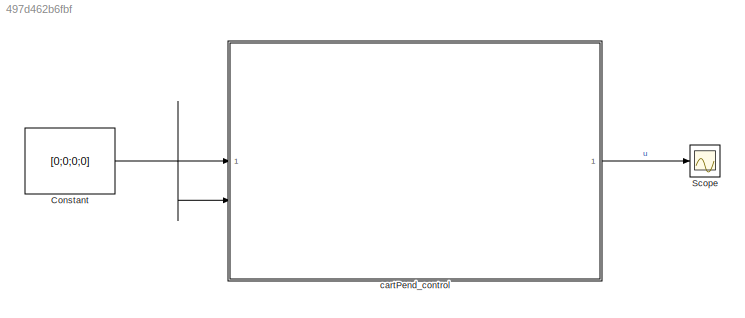
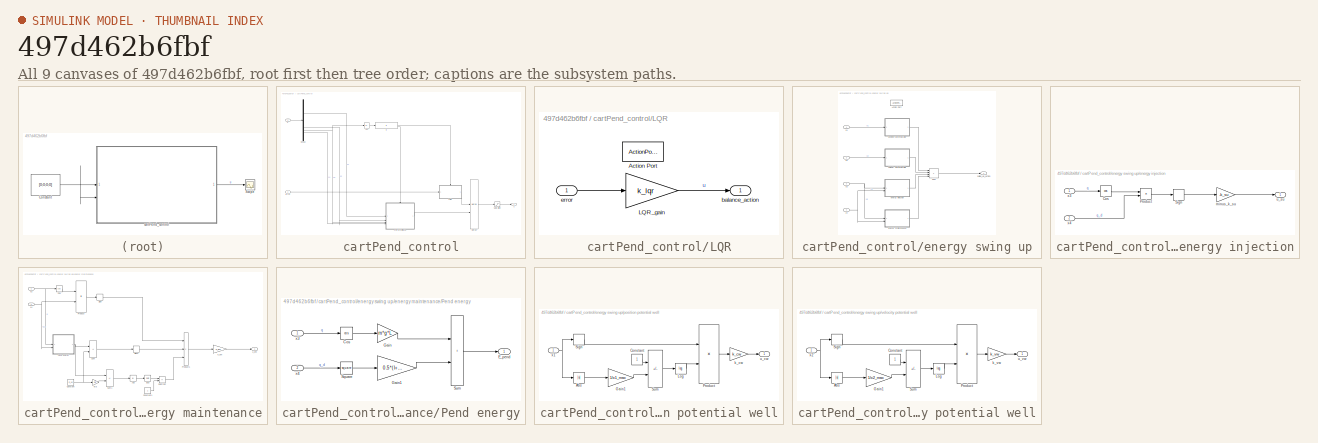
[diagram: thumbnail index - all 9 canvases of the model, root first then tree order]
MODEL slx_497d462b6fbf
KIND model
CONFIG AbsTol = auto
CONFIG EnableMultiTasking = off
CONFIG FixedStep = 0.001
CONFIG MaxStep = auto
CONFIG MinStep = auto
CONFIG RelTol = 1e-3
CONFIG SampleTimeConstraint = Unconstrained
CONFIG SolverName = FixedStepDiscrete
CONFIG StartTime = 0.0
CONFIG StopTime = 10.0
BLOCK [Constant] Constant
  Value = [0;0;0;0]
  VectorParams1D = off
BLOCK [Scope] Scope
  Floating = off
  NumInputPorts = 1
  ScopeSpecificationString = Simulink.scopes.TimeScopeBlockCfg('CurrentConfiguration', extmgr.ConfigurationSet(extmgr.Configuration('Core','General UI',true),extmgr.Configuration('Core','Source UI',true),extmgr.Configuration('Sources','WiredSimulink',true),extmgr.Configuration('Visuals','Time Domain',true,'SerializedDisplays',{struct('MinYLimReal','-1.00000','MaxYLimReal','1.00000','YLabelReal','','MinYLimMag','0.00000','MaxY...<+1378ch>
BLOCK [SubSystem] cartPend_control
  SystemSampleTime = 0.001
  TreatAsAtomicUnit = on
BLOCK [Abs] cartPend_control/Abs
  SaturateOnIntegerOverflow = off
BLOCK [Demux] cartPend_control/Demux
BLOCK [If] cartPend_control/If
  IfExpression = u1 < angle_threshold
BLOCK [SubSystem] cartPend_control/LQR
  TreatAsAtomicUnit = on
BLOCK [ActionPort] cartPend_control/LQR/Action Port
  ActionPortLabel = if(u1 < angle_threshold)
BLOCK [Gain] cartPend_control/LQR/LQR_gain
  Gain = k_lqr
  Multiplication = Matrix(K*u)
BLOCK [Outport] cartPend_control/LQR/balance_action
BLOCK [Inport] cartPend_control/LQR/error
BLOCK [Merge] cartPend_control/Merge
BLOCK [Saturate] cartPend_control/Saturation
  LowerLimit = -uMax
  UpperLimit = uMax
BLOCK [Inport] cartPend_control/X
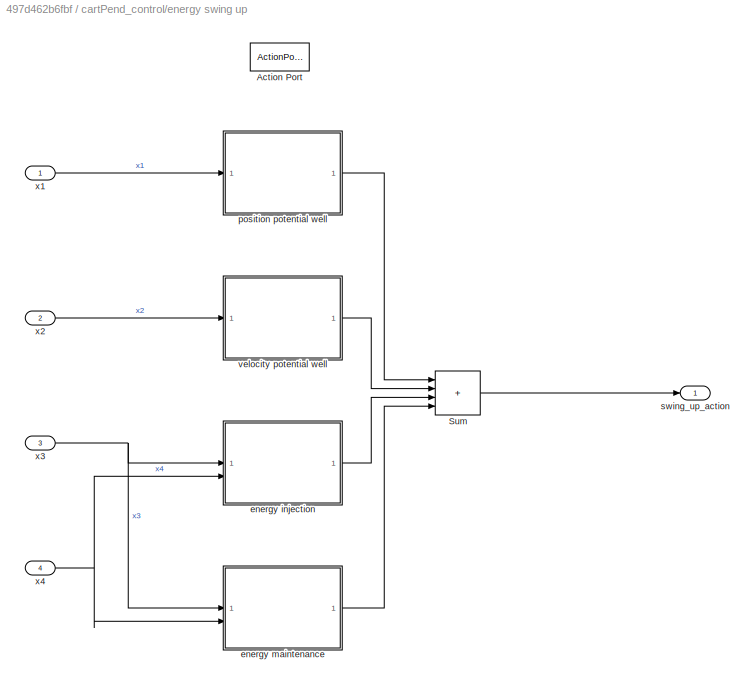
BLOCK [SubSystem] cartPend_control/energy swing up
  TreatAsAtomicUnit = on
BLOCK [ActionPort] cartPend_control/energy swing up/Action Port
  ActionPortLabel = else
BLOCK [Sum] cartPend_control/energy swing up/Sum
  IconShape = rectangular
  Inputs = ++++
BLOCK [SubSystem] cartPend_control/energy swing up/energy injection
BLOCK [Trigonometry] cartPend_control/energy swing up/energy injection/Cos
  Operator = cos
BLOCK [Product] cartPend_control/energy swing up/energy injection/Product
BLOCK [Signum] cartPend_control/energy swing up/energy injection/Sign
BLOCK [Gain] cartPend_control/energy swing up/energy injection/minus_k_su
  Gain = -k_su
BLOCK [Outport] cartPend_control/energy swing up/energy injection/u_su
BLOCK [Inport] cartPend_control/energy swing up/energy injection/x3
BLOCK [Inport] cartPend_control/energy swing up/energy injection/x4
  Port = 2
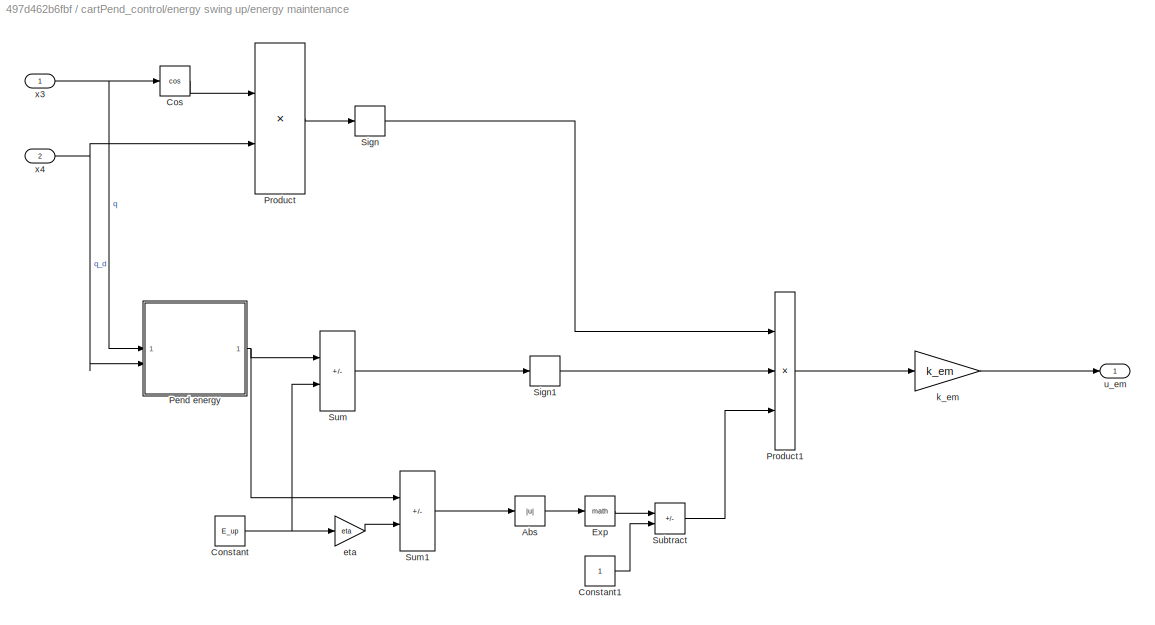
BLOCK [SubSystem] cartPend_control/energy swing up/energy maintenance
BLOCK [Abs] cartPend_control/energy swing up/energy maintenance/Abs
  SaturateOnIntegerOverflow = off
BLOCK [Constant] cartPend_control/energy swing up/energy maintenance/Constant
  Value = E_up
BLOCK [Constant] cartPend_control/energy swing up/energy maintenance/Constant1
BLOCK [Trigonometry] cartPend_control/energy swing up/energy maintenance/Cos
  Operator = cos
BLOCK [Math] cartPend_control/energy swing up/energy maintenance/Exp
BLOCK [SubSystem] cartPend_control/energy swing up/energy maintenance/Pend energy
BLOCK [Trigonometry] cartPend_control/energy swing up/energy maintenance/Pend energy/Cos
  Operator = cos
BLOCK [Outport] cartPend_control/energy swing up/energy maintenance/Pend energy/E_pend
BLOCK [Gain] cartPend_control/energy swing up/energy maintenance/Pend energy/Gain
  Gain = m*g*L
BLOCK [Gain] cartPend_control/energy swing up/energy maintenance/Pend energy/Gain1
  Gain = 0.5*(I+m*L^2)
BLOCK [Math] cartPend_control/energy swing up/energy maintenance/Pend energy/Square
  Operator = square
BLOCK [Sum] cartPend_control/energy swing up/energy maintenance/Pend energy/Sum
  IconShape = rectangular
BLOCK [Inport] cartPend_control/energy swing up/energy maintenance/Pend energy/x3
BLOCK [Inport] cartPend_control/energy swing up/energy maintenance/Pend energy/x4
  Port = 2
BLOCK [Product] cartPend_control/energy swing up/energy maintenance/Product
BLOCK [Product] cartPend_control/energy swing up/energy maintenance/Product1
  Inputs = 3
BLOCK [Signum] cartPend_control/energy swing up/energy maintenance/Sign
BLOCK [Signum] cartPend_control/energy swing up/energy maintenance/Sign1
BLOCK [Sum] cartPend_control/energy swing up/energy maintenance/Subtract
  IconShape = rectangular
  Inputs = +-
BLOCK [Sum] cartPend_control/energy swing up/energy maintenance/Sum
  IconShape = rectangular
  Inputs = +-
BLOCK [Sum] cartPend_control/energy swing up/energy maintenance/Sum1
  IconShape = rectangular
  Inputs = +-
BLOCK [Gain] cartPend_control/energy swing up/energy maintenance/eta
  Gain = eta
BLOCK [Gain] cartPend_control/energy swing up/energy maintenance/k_em
  Gain = k_em
BLOCK [Outport] cartPend_control/energy swing up/energy maintenance/u_em
BLOCK [Inport] cartPend_control/energy swing up/energy maintenance/x3
BLOCK [Inport] cartPend_control/energy swing up/energy maintenance/x4
  Port = 2
BLOCK [SubSystem] cartPend_control/energy swing up/position potential well
BLOCK [Abs] cartPend_control/energy swing up/position potential well/Abs
  SaturateOnIntegerOverflow = off
BLOCK [Constant] cartPend_control/energy swing up/position potential well/Constant
BLOCK [Gain] cartPend_control/energy swing up/position potential well/Gain1
  Gain = 1/x1_max
BLOCK [Math] cartPend_control/energy swing up/position potential well/Log
  Operator = log
BLOCK [Product] cartPend_control/energy swing up/position potential well/Product
BLOCK [Signum] cartPend_control/energy swing up/position potential well/Sign
BLOCK [Sum] cartPend_control/energy swing up/position potential well/Sum
  IconShape = rectangular
  Inputs = +-
BLOCK [Gain] cartPend_control/energy swing up/position potential well/k_cw
  Gain = k_cw
BLOCK [Outport] cartPend_control/energy swing up/position potential well/u_cw
BLOCK [Inport] cartPend_control/energy swing up/position potential well/x1
BLOCK [Outport] cartPend_control/energy swing up/swing_up_action
BLOCK [SubSystem] cartPend_control/energy swing up/velocity potential well
BLOCK [Abs] cartPend_control/energy swing up/velocity potential well/Abs
  SaturateOnIntegerOverflow = off
BLOCK [Constant] cartPend_control/energy swing up/velocity potential well/Constant
BLOCK [Gain] cartPend_control/energy swing up/velocity potential well/Gain1
  Gain = 1/x2_max
BLOCK [Math] cartPend_control/energy swing up/velocity potential well/Log
  Operator = log
BLOCK [Product] cartPend_control/energy swing up/velocity potential well/Product
BLOCK [Signum] cartPend_control/energy swing up/velocity potential well/Sign
BLOCK [Sum] cartPend_control/energy swing up/velocity potential well/Sum
  IconShape = rectangular
  Inputs = +-
BLOCK [Gain] cartPend_control/energy swing up/velocity potential well/k_vw
  Gain = k_vw
BLOCK [Outport] cartPend_control/energy swing up/velocity potential well/u_vw
BLOCK [Inport] cartPend_control/energy swing up/velocity potential well/x2
BLOCK [Inport] cartPend_control/energy swing up/x1
BLOCK [Inport] cartPend_control/energy swing up/x2
  Port = 2
BLOCK [Inport] cartPend_control/energy swing up/x3
  Port = 3
BLOCK [Inport] cartPend_control/energy swing up/x4
  Port = 4
BLOCK [Inport] cartPend_control/error
  Port = 2
BLOCK [Outport] cartPend_control/u
NET Constant:1 -> cartPend_control:1, cartPend_control:2
LINE cartPend_control/Abs:1 -> cartPend_control/If:1
LINE cartPend_control/Demux:1 -> cartPend_control/energy swing up:1
LINE cartPend_control/Demux:2 -> cartPend_control/energy swing up:2
NET cartPend_control/Demux:3 -> cartPend_control/Abs:1, cartPend_control/energy swing up:3
LINE cartPend_control/Demux:4 -> cartPend_control/energy swing up:4
LINE cartPend_control/If:1 -> cartPend_control/LQR:ifaction
LINE cartPend_control/If:2 -> cartPend_control/energy swing up:ifaction
LINE cartPend_control/LQR/LQR_gain:1 -> cartPend_control/LQR/balance_action:1
LINE cartPend_control/LQR/error:1 -> cartPend_control/LQR/LQR_gain:1
LINE cartPend_control/LQR:1 -> cartPend_control/Merge:1
LINE cartPend_control/Merge:1 -> cartPend_control/Saturation:1
LINE cartPend_control/Saturation:1 -> cartPend_control/u:1
LINE cartPend_control/X:1 -> cartPend_control/Demux:1
LINE cartPend_control/energy swing up/Sum:1 -> cartPend_control/energy swing up/swing_up_action:1
LINE cartPend_control/energy swing up/energy injection/Cos:1 -> cartPend_control/energy swing up/energy injection/Product:1
LINE cartPend_control/energy swing up/energy injection/Product:1 -> cartPend_control/energy swing up/energy injection/Sign:1
LINE cartPend_control/energy swing up/energy injection/Sign:1 -> cartPend_control/energy swing up/energy injection/minus_k_su:1
LINE cartPend_control/energy swing up/energy injection/minus_k_su:1 -> cartPend_control/energy swing up/energy injection/u_su:1
LINE cartPend_control/energy swing up/energy injection/x3:1 -> cartPend_control/energy swing up/energy injection/Cos:1
LINE cartPend_control/energy swing up/energy injection/x4:1 -> cartPend_control/energy swing up/energy injection/Product:2
LINE cartPend_control/energy swing up/energy injection:1 -> cartPend_control/energy swing up/Sum:3
LINE cartPend_control/energy swing up/energy maintenance/Abs:1 -> cartPend_control/energy swing up/energy maintenance/Exp:1
LINE cartPend_control/energy swing up/energy maintenance/Constant1:1 -> cartPend_control/energy swing up/energy maintenance/Subtract:2
NET cartPend_control/energy swing up/energy maintenance/Constant:1 -> cartPend_control/energy swing up/energy maintenance/Sum:2, cartPend_control/energy swing up/energy maintenance/eta:1
LINE cartPend_control/energy swing up/energy maintenance/Cos:1 -> cartPend_control/energy swing up/energy maintenance/Product:1
LINE cartPend_control/energy swing up/energy maintenance/Exp:1 -> cartPend_control/energy swing up/energy maintenance/Subtract:1
LINE cartPend_control/energy swing up/energy maintenance/Pend energy/Cos:1 -> cartPend_control/energy swing up/energy maintenance/Pend energy/Gain:1
LINE cartPend_control/energy swing up/energy maintenance/Pend energy/Gain1:1 -> cartPend_control/energy swing up/energy maintenance/Pend energy/Sum:2
LINE cartPend_control/energy swing up/energy maintenance/Pend energy/Gain:1 -> cartPend_control/energy swing up/energy maintenance/Pend energy/Sum:1
LINE cartPend_control/energy swing up/energy maintenance/Pend energy/Square:1 -> cartPend_control/energy swing up/energy maintenance/Pend energy/Gain1:1
LINE cartPend_control/energy swing up/energy maintenance/Pend energy/Sum:1 -> cartPend_control/energy swing up/energy maintenance/Pend energy/E_pend:1
LINE cartPend_control/energy swing up/energy maintenance/Pend energy/x3:1 -> cartPend_control/energy swing up/energy maintenance/Pend energy/Cos:1
LINE cartPend_control/energy swing up/energy maintenance/Pend energy/x4:1 -> cartPend_control/energy swing up/energy maintenance/Pend energy/Square:1
NET cartPend_control/energy swing up/energy maintenance/Pend energy:1 -> cartPend_control/energy swing up/energy maintenance/Sum1:1, cartPend_control/energy swing up/energy maintenance/Sum:1
LINE cartPend_control/energy swing up/energy maintenance/Product1:1 -> cartPend_control/energy swing up/energy maintenance/k_em:1
LINE cartPend_control/energy swing up/energy maintenance/Product:1 -> cartPend_control/energy swing up/energy maintenance/Sign:1
LINE cartPend_control/energy swing up/energy maintenance/Sign1:1 -> cartPend_control/energy swing up/energy maintenance/Product1:2
LINE cartPend_control/energy swing up/energy maintenance/Sign:1 -> cartPend_control/energy swing up/energy maintenance/Product1:1
LINE cartPend_control/energy swing up/energy maintenance/Subtract:1 -> cartPend_control/energy swing up/energy maintenance/Product1:3
LINE cartPend_control/energy swing up/energy maintenance/Sum1:1 -> cartPend_control/energy swing up/energy maintenance/Abs:1
LINE cartPend_control/energy swing up/energy maintenance/Sum:1 -> cartPend_control/energy swing up/energy maintenance/Sign1:1
LINE cartPend_control/energy swing up/energy maintenance/eta:1 -> cartPend_control/energy swing up/energy maintenance/Sum1:2
LINE cartPend_control/energy swing up/energy maintenance/k_em:1 -> cartPend_control/energy swing up/energy maintenance/u_em:1
NET cartPend_control/energy swing up/energy maintenance/x3:1 -> cartPend_control/energy swing up/energy maintenance/Cos:1, cartPend_control/energy swing up/energy maintenance/Pend energy:1
NET cartPend_control/energy swing up/energy maintenance/x4:1 -> cartPend_control/energy swing up/energy maintenance/Pend energy:2, cartPend_control/energy swing up/energy maintenance/Product:2
LINE cartPend_control/energy swing up/energy maintenance:1 -> cartPend_control/energy swing up/Sum:4
LINE cartPend_control/energy swing up/position potential well/Abs:1 -> cartPend_control/energy swing up/position potential well/Gain1:1
LINE cartPend_control/energy swing up/position potential well/Constant:1 -> cartPend_control/energy swing up/position potential well/Sum:1
LINE cartPend_control/energy swing up/position potential well/Gain1:1 -> cartPend_control/energy swing up/position potential well/Sum:2
LINE cartPend_control/energy swing up/position potential well/Log:1 -> cartPend_control/energy swing up/position potential well/Product:2
LINE cartPend_control/energy swing up/position potential well/Product:1 -> cartPend_control/energy swing up/position potential well/k_cw:1
LINE cartPend_control/energy swing up/position potential well/Sign:1 -> cartPend_control/energy swing up/position potential well/Product:1
LINE cartPend_control/energy swing up/position potential well/Sum:1 -> cartPend_control/energy swing up/position potential well/Log:1
LINE cartPend_control/energy swing up/position potential well/k_cw:1 -> cartPend_control/energy swing up/position potential well/u_cw:1
NET cartPend_control/energy swing up/position potential well/x1:1 -> cartPend_control/energy swing up/position potential well/Abs:1, cartPend_control/energy swing up/position potential well/Sign:1
LINE cartPend_control/energy swing up/position potential well:1 -> cartPend_control/energy swing up/Sum:1
LINE cartPend_control/energy swing up/velocity potential well/Abs:1 -> cartPend_control/energy swing up/velocity potential well/Gain1:1
LINE cartPend_control/energy swing up/velocity potential well/Constant:1 -> cartPend_control/energy swing up/velocity potential well/Sum:1
LINE cartPend_control/energy swing up/velocity potential well/Gain1:1 -> cartPend_control/energy swing up/velocity potential well/Sum:2
LINE cartPend_control/energy swing up/velocity potential well/Log:1 -> cartPend_control/energy swing up/velocity potential well/Product:2
LINE cartPend_control/energy swing up/velocity potential well/Product:1 -> cartPend_control/energy swing up/velocity potential well/k_vw:1
LINE cartPend_control/energy swing up/velocity potential well/Sign:1 -> cartPend_control/energy swing up/velocity potential well/Product:1
LINE cartPend_control/energy swing up/velocity potential well/Sum:1 -> cartPend_control/energy swing up/velocity potential well/Log:1
LINE cartPend_control/energy swing up/velocity potential well/k_vw:1 -> cartPend_control/energy swing up/velocity potential well/u_vw:1
NET cartPend_control/energy swing up/velocity potential well/x2:1 -> cartPend_control/energy swing up/velocity potential well/Abs:1, cartPend_control/energy swing up/velocity potential well/Sign:1
LINE cartPend_control/energy swing up/velocity potential well:1 -> cartPend_control/energy swing up/Sum:2
LINE cartPend_control/energy swing up/x1:1 -> cartPend_control/energy swing up/position potential well:1
LINE cartPend_control/energy swing up/x2:1 -> cartPend_control/energy swing up/velocity potential well:1
NET cartPend_control/energy swing up/x3:1 -> cartPend_control/energy swing up/energy injection:1, cartPend_control/energy swing up/energy maintenance:1
NET cartPend_control/energy swing up/x4:1 -> cartPend_control/energy swing up/energy injection:2, cartPend_control/energy swing up/energy maintenance:2
LINE cartPend_control/energy swing up:1 -> cartPend_control/Merge:2
LINE cartPend_control/error:1 -> cartPend_control/LQR:1
LINE cartPend_control:1 -> Scope:1
note: NET lines group one-source signal fan-out (src -> all destinations, sorted); 1:1 wires keep LINE
